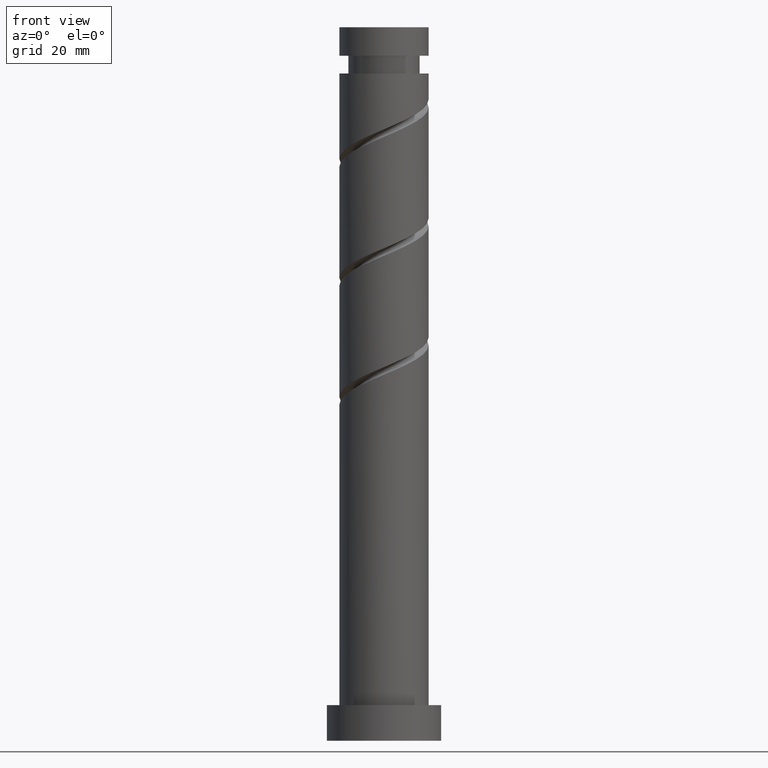
[diagram: clean part render]
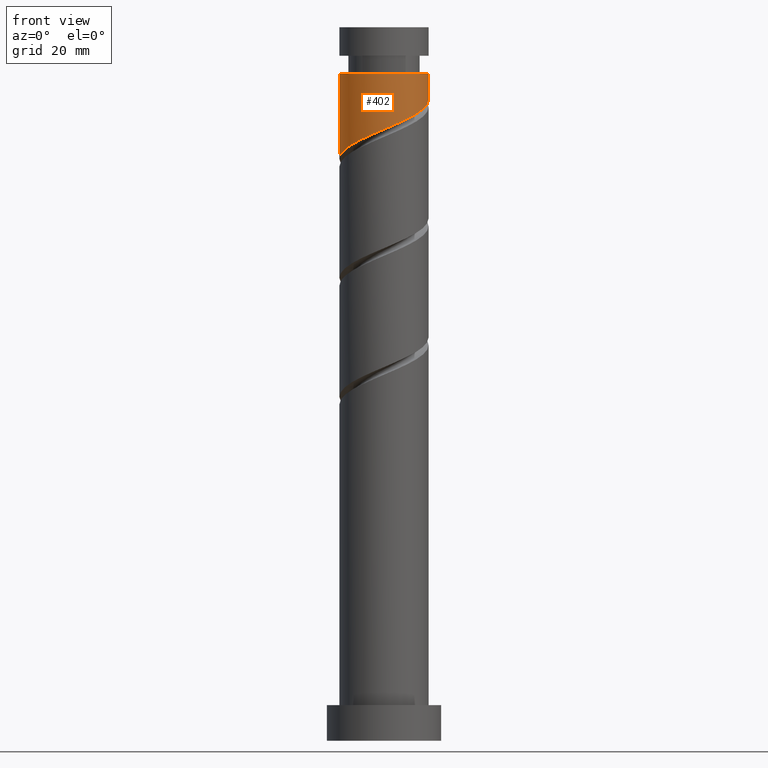
[diagram: same view with one face highlighted and labeled with its STEP entity id]
A machine part, front view. The second image highlights one B-rep face of the part: STEP entity #402.
In plain terms, the highlighted cylindrical surface (partial cylindrical patch) has radius 12.5 mm, axis along (-0, -0, -1).
Its self-contained STEP definition (entity closure, byte-faithful):
#42 = CARTESIAN_POINT ( 'NONE',  ( 2.410371790660427838, -12.37530978297895778, 172.4401572515986913 ) ) ;
#52 = CARTESIAN_POINT ( 'NONE',  ( 0.7678231466697355012, -12.47639561794343699, 171.7457128071542911 ) ) ;
#58 = CARTESIAN_POINT ( 'NONE',  ( 12.24999999999999822, -2.487468592766554742, 178.6901572515986629 ) ) ;
#173 = CARTESIAN_POINT ( 'NONE',  ( 10.45505570518539074, -7.046275228471891694, 176.6068239182654054 ) ) ;
#191 = CARTESIAN_POINT ( 'NONE',  ( -12.50000000000000178, -0.3842743957209279193, 163.2502209281702505 ) ) ;
#195 = EDGE_CURVE ( 'NONE', #1386, #714, #507, .T. ) ;
#299 = AXIS2_PLACEMENT_3D ( 'NONE', #1733, #1023, #885 ) ;
#308 = CARTESIAN_POINT ( 'NONE',  ( 11.18878712613873105, -5.573243458342028944, 177.3012683627098056 ) ) ;
#320 = CARTESIAN_POINT ( 'NONE',  ( -5.573243458342019174, -11.18878712613873283, 168.9679350293765197 ) ) ;
#327 = CARTESIAN_POINT ( 'NONE',  ( -11.85254549274265123, -3.970789007548233496, 164.8012683627097772 ) ) ;
#365 = EDGE_LOOP ( 'NONE', ( #593, #818, #1293, #1123 ) ) ;
#402 = ADVANCED_FACE ( 'NONE', ( #1332 ), #656, .T. ) ;
#414 = DIRECTION ( 'NONE',  ( -0.000000000000000000, -0.000000000000000000, -1.000000000000000000 ) ) ;
#460 = CARTESIAN_POINT ( 'NONE',  ( 11.92251854709207848, -4.100211688212163530, 177.9957128071542627 ) ) ;
#507 =( BOUNDED_CURVE ( )  B_SPLINE_CURVE ( 2, ( #1162, #1519, #58, #460, #308, #173, #1146, #1265, #1406, #1673, #1548, #42, #52, #579, #589, #1003, #320, #857, #1541, #726, #1272, #1690, #327, #867, #1280, #191, #734 ),
 .UNSPECIFIED., .F., .T. ) 
 B_SPLINE_CURVE_WITH_KNOTS ( ( 3, 2, 2, 2, 2, 2, 2, 2, 2, 2, 2, 2, 2, 3 ),
 ( 0.3045317669814461836, 0.3125000000000000000, 0.3229166666666666852, 0.3333333333333333148, 0.3437500000000000000, 0.3541666666666666852, 0.3645833333333333148, 0.3750000000000000000, 0.3854166666666666852, 0.3958333333333333148, 0.4062500000000000000, 0.4166666666666666852, 0.4270833333333333148, 0.4295317669814461836 ),
 .UNSPECIFIED. ) 
 CURVE ( )  GEOMETRIC_REPRESENTATION_ITEM ( )  RATIONAL_B_SPLINE_CURVE ( ( 0.9062941362546333979, 0.9031415850403374801, 0.9090909090909128354, 0.9013135103398313142, 0.9090909090909128354, 0.9013135103398313142, 0.9090909090909128354, 0.9013135103398313142, 0.9090909090909128354, 0.9013135103398313142, 0.9090909090909128354, 0.9013135103398313142, 0.9090909090909128354, 0.9013135103398313142, 0.9090909090909128354, 0.9013135103398313142, 0.9090909090909128354, 0.9013135103398313142, 0.9090909090909128354, 0.9013135103398313142, 0.9090909090909128354, 0.9013135103398313142, 0.9090909090909128354, 0.9013135103398313142, 0.9090909090909128354, 0.9072628343904067805, 0.9062941362546333979 ) ) 
 REPRESENTATION_ITEM ( '' )  );
#548 = LINE ( 'NONE', #575, #582 ) ;
#575 = CARTESIAN_POINT ( 'NONE',  ( 12.50000000000000000, 1.530808498934191521E-15, 200.0000000000000000 ) ) ;
#579 = CARTESIAN_POINT ( 'NONE',  ( -0.8747254973209576123, -12.57748145290792863, 171.0512683627098056 ) ) ;
#582 = VECTOR ( 'NONE', #414, 1000.000000000000000 ) ;
#589 = CARTESIAN_POINT ( 'NONE',  ( -2.487468592766553854, -12.24999999999999822, 170.3568239182653770 ) ) ;
#593 = ORIENTED_EDGE ( 'NONE', *, *, #1152, .F. ) ;
#656 = CYLINDRICAL_SURFACE ( 'NONE', #299, 12.50000000000000000 ) ;
#668 = VERTEX_POINT ( 'NONE', #1470 ) ;
#714 = VERTEX_POINT ( 'NONE', #1072 ) ;
#726 = CARTESIAN_POINT ( 'NONE',  ( -9.512146756431651085, -8.275098094766798695, 166.8846016960431200 ) ) ;
#734 = CARTESIAN_POINT ( 'NONE',  ( -12.50000000000000000, -7.297446808486691903E-15, 163.0870572401421157 ) ) ;
#818 = ORIENTED_EDGE ( 'NONE', *, *, #1714, .T. ) ;
#857 = CARTESIAN_POINT ( 'NONE',  ( -7.046275228471886365, -10.45505570518539784, 168.2734905849320342 ) ) ;
#867 = CARTESIAN_POINT ( 'NONE',  ( -12.37530978297895778, -2.410371790660432723, 164.1068239182653770 ) ) ;
#885 = DIRECTION ( 'NONE',  ( -1.000000000000000000, 0.000000000000000000, 0.000000000000000000 ) ) ;
#1003 = CARTESIAN_POINT ( 'NONE',  ( -4.100211688212158201, -11.92251854709208381, 169.6623794738208915 ) ) ;
#1015 = CARTESIAN_POINT ( 'NONE',  ( 0.000000000000000000, 0.000000000000000000, 187.0234905849320342 ) ) ;
#1023 = DIRECTION ( 'NONE',  ( -0.000000000000000000, -0.000000000000000000, -1.000000000000000000 ) ) ;
#1040 = EDGE_CURVE ( 'NONE', #1200, #714, #1088, .T. ) ;
#1072 = CARTESIAN_POINT ( 'NONE',  ( -12.50000000000000000, -7.297446808486691903E-15, 163.0870572401421157 ) ) ;
#1088 = LINE ( 'NONE', #1614, #1427 ) ;
#1123 = ORIENTED_EDGE ( 'NONE', *, *, #195, .F. ) ;
#1146 = CARTESIAN_POINT ( 'NONE',  ( 9.365076899976095604, -8.279210992451769613, 175.9123794738209767 ) ) ;
#1152 = EDGE_CURVE ( 'NONE', #668, #1386, #548, .T. ) ;
#1162 = CARTESIAN_POINT ( 'NONE',  ( 12.50000000000000355, 4.426320195311600524E-15, 179.7537239068088013 ) ) ;
#1200 = VERTEX_POINT ( 'NONE', #1686 ) ;
#1219 = DIRECTION ( 'NONE',  ( -0.000000000000000000, -0.000000000000000000, -1.000000000000000000 ) ) ;
#1265 = CARTESIAN_POINT ( 'NONE',  ( 8.275098094766798695, -9.512146756431651085, 175.2179350293764912 ) ) ;
#1272 = CARTESIAN_POINT ( 'NONE',  ( -10.42096397946899344, -6.903152159601418703, 166.1901572515986629 ) ) ;
#1280 = CARTESIAN_POINT ( 'NONE',  ( -12.47639561794343344, -0.7678231466697390539, 163.4123794738208915 ) ) ;
#1293 = ORIENTED_EDGE ( 'NONE', *, *, #1040, .T. ) ;
#1300 = DIRECTION ( 'NONE',  ( -0.000000000000000000, -0.000000000000000000, -1.000000000000000000 ) ) ;
#1332 = FACE_OUTER_BOUND ( 'NONE', #365, .T. ) ;
#1374 = AXIS2_PLACEMENT_3D ( 'NONE', #1015, #1300, #1425 ) ;
#1386 = VERTEX_POINT ( 'NONE', #1553 ) ;
#1406 = CARTESIAN_POINT ( 'NONE',  ( 6.903152159601413373, -10.42096397946900233, 174.5234905849320057 ) ) ;
#1425 = DIRECTION ( 'NONE',  ( -1.000000000000000000, 0.000000000000000000, 0.000000000000000000 ) ) ;
#1427 = VECTOR ( 'NONE', #1219, 1000.000000000000000 ) ;
#1470 = CARTESIAN_POINT ( 'NONE',  ( 12.49999999999999112, 1.530808498934190732E-15, 187.0234905849320342 ) ) ;
#1519 = CARTESIAN_POINT ( 'NONE',  ( 12.50000000000000888, -1.256297269074007295, 179.2202975376195297 ) ) ;
#1541 = CARTESIAN_POINT ( 'NONE',  ( -8.279210992451767837, -9.365076899976097380, 167.5790461404875771 ) ) ;
#1548 = CARTESIAN_POINT ( 'NONE',  ( 3.970789007548233496, -11.85254549274265123, 173.1346016960431484 ) ) ;
#1553 = CARTESIAN_POINT ( 'NONE',  ( 12.50000000000000355, 4.426320195311600524E-15, 179.7537239068088013 ) ) ;
#1614 = CARTESIAN_POINT ( 'NONE',  ( -12.50000000000000000, 0.000000000000000000, 200.0000000000000000 ) ) ;
#1673 = CARTESIAN_POINT ( 'NONE',  ( 5.531206224436036045, -11.32978120250635179, 173.8290461404876055 ) ) ;
#1686 = CARTESIAN_POINT ( 'NONE',  ( -12.49999999999999112, 0.000000000000000000, 187.0234905849320342 ) ) ;
#1690 = CARTESIAN_POINT ( 'NONE',  ( -11.32978120250635179, -5.531206224436036045, 165.4957128071542627 ) ) ;
#1709 = CIRCLE ( 'NONE', #1374, 12.49999999999999112 ) ;
#1714 = EDGE_CURVE ( 'NONE', #668, #1200, #1709, .T. ) ;
#1733 = CARTESIAN_POINT ( 'NONE',  ( 0.000000000000000000, 0.000000000000000000, 200.0000000000000000 ) ) ;